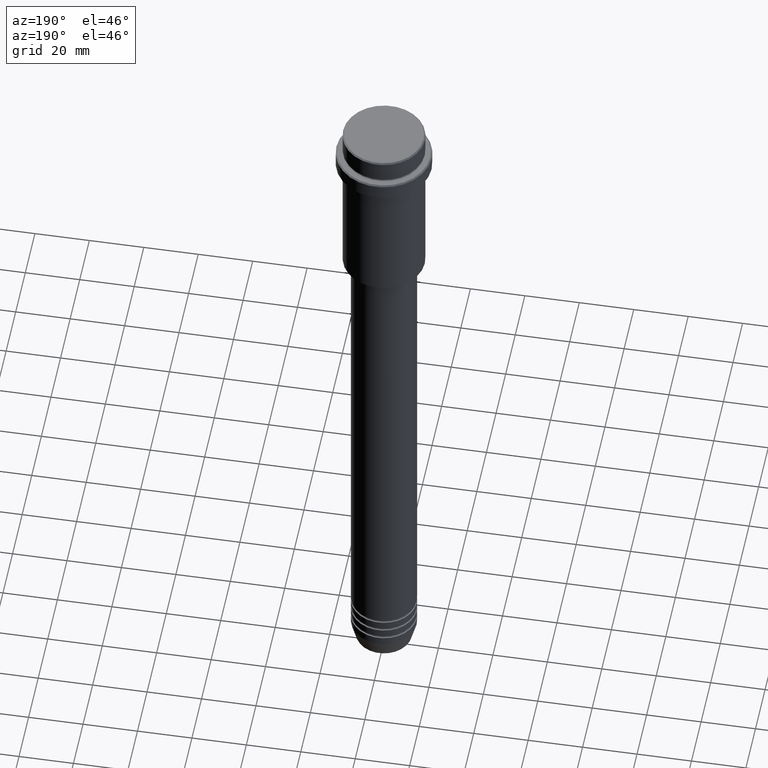
[diagram: clean part render]
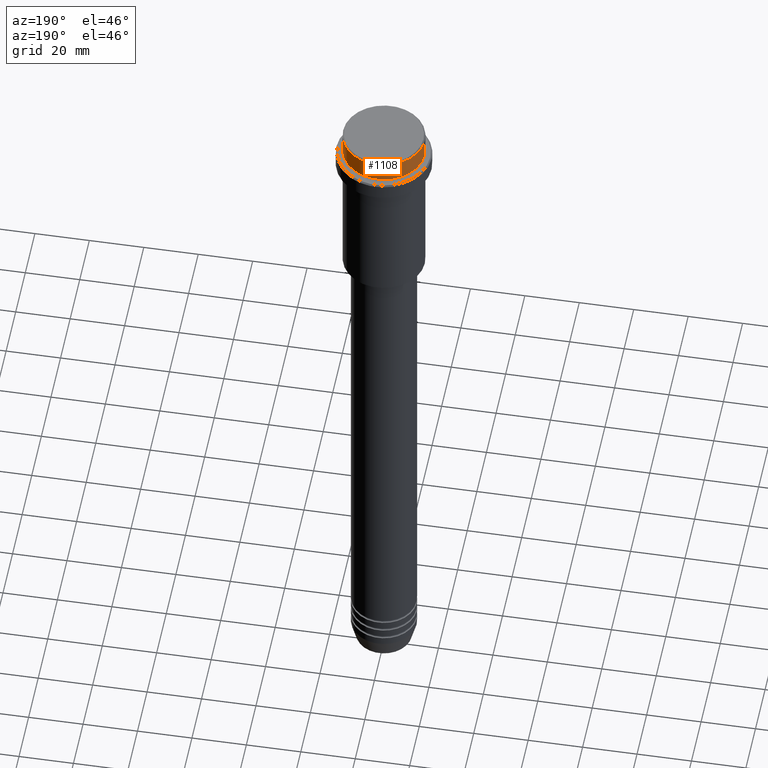
[diagram: same view with one face highlighted and labeled with its STEP entity id]
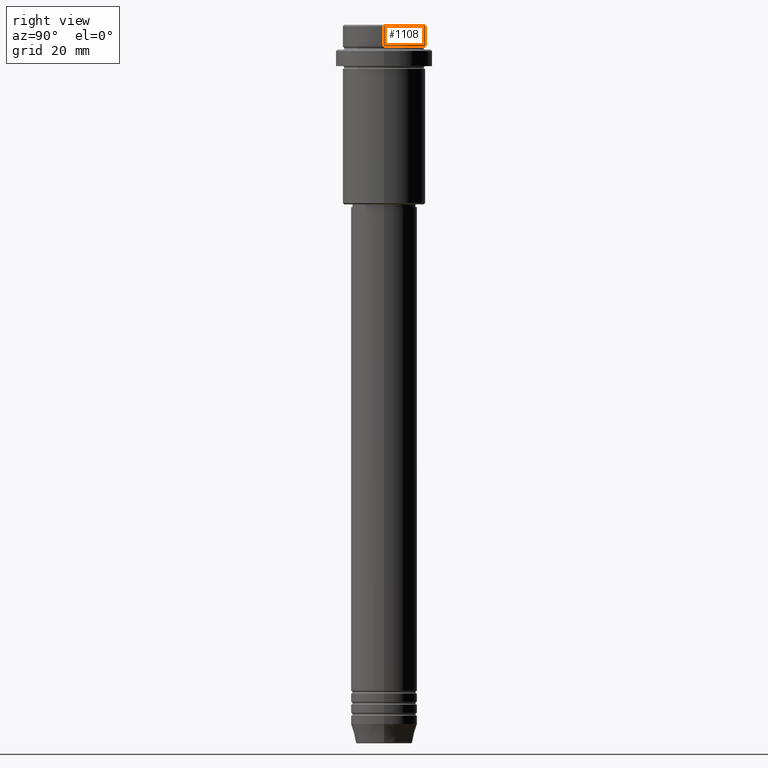
[diagram: same view with one face highlighted and labeled with its STEP entity id]
A machine part, auxiliary view. The second image highlights one B-rep face of the part: STEP entity #1108.
A second angle (right view) of the same face is appended — the face is thin or edge-on in the first view.
In plain terms, the highlighted cylindrical surface (partial cylindrical patch) has radius 15 mm, axis along (-0, -0, 1).
Its self-contained STEP definition (entity closure, byte-faithful):
#21 = DIRECTION ( 'NONE',  ( -0.000000000000000000, -0.000000000000000000, 1.000000000000000000 ) ) ;
#28 = CYLINDRICAL_SURFACE ( 'NONE', #862, 15.00000000000000000 ) ;
#65 = LINE ( 'NONE', #496, #192 ) ;
#81 = VERTEX_POINT ( 'NONE', #1085 ) ;
#145 = LINE ( 'NONE', #483, #997 ) ;
#173 = ORIENTED_EDGE ( 'NONE', *, *, #450, .T. ) ;
#192 = VECTOR ( 'NONE', #1375, 1000.000000000000000 ) ;
#195 = DIRECTION ( 'NONE',  ( -0.000000000000000000, -0.000000000000000000, 1.000000000000000000 ) ) ;
#249 = VERTEX_POINT ( 'NONE', #1035 ) ;
#256 = FACE_OUTER_BOUND ( 'NONE', #770, .T. ) ;
#260 = CARTESIAN_POINT ( 'NONE',  ( 0.000000000000000000, 0.000000000000000000, -7.999999999999998224 ) ) ;
#353 = AXIS2_PLACEMENT_3D ( 'NONE', #260, #896, #435 ) ;
#435 = DIRECTION ( 'NONE',  ( 1.000000000000000000, 0.000000000000000000, 0.000000000000000000 ) ) ;
#445 = CARTESIAN_POINT ( 'NONE',  ( 0.000000000000000000, 0.000000000000000000, -0.5000000000000108802 ) ) ;
#450 = EDGE_CURVE ( 'NONE', #249, #81, #1230, .T. ) ;
#455 = CARTESIAN_POINT ( 'NONE',  ( 0.000000000000000000, 0.000000000000000000, 0.000000000000000000 ) ) ;
#483 = CARTESIAN_POINT ( 'NONE',  ( -15.00000000000000000, 1.836970198721029589E-15, 0.000000000000000000 ) ) ;
#496 = CARTESIAN_POINT ( 'NONE',  ( 15.00000000000000000, 0.000000000000000000, 0.000000000000000000 ) ) ;
#525 = CARTESIAN_POINT ( 'NONE',  ( 15.00000000000000000, 0.000000000000000000, -7.999999999999998224 ) ) ;
#575 = DIRECTION ( 'NONE',  ( 0.000000000000000000, 0.000000000000000000, -1.000000000000000000 ) ) ;
#671 = DIRECTION ( 'NONE',  ( 1.000000000000000000, 0.000000000000000000, 0.000000000000000000 ) ) ;
#770 = EDGE_LOOP ( 'NONE', ( #1177, #1402, #173, #809 ) ) ;
#791 = VERTEX_POINT ( 'NONE', #525 ) ;
#809 = ORIENTED_EDGE ( 'NONE', *, *, #876, .F. ) ;
#862 = AXIS2_PLACEMENT_3D ( 'NONE', #455, #21, #1326 ) ;
#876 = EDGE_CURVE ( 'NONE', #791, #81, #65, .T. ) ;
#896 = DIRECTION ( 'NONE',  ( -0.000000000000000000, -0.000000000000000000, 1.000000000000000000 ) ) ;
#929 = EDGE_CURVE ( 'NONE', #1398, #249, #145, .T. ) ;
#997 = VECTOR ( 'NONE', #195, 1000.000000000000000 ) ;
#1035 = CARTESIAN_POINT ( 'NONE',  ( -15.00000000000000000, 1.836970198721029589E-15, -0.5000000000000108802 ) ) ;
#1043 = CARTESIAN_POINT ( 'NONE',  ( -15.00000000000000000, 1.836970198721029589E-15, -7.999999999999998224 ) ) ;
#1085 = CARTESIAN_POINT ( 'NONE',  ( 15.00000000000000000, 0.000000000000000000, -0.5000000000000108802 ) ) ;
#1108 = ADVANCED_FACE ( 'NONE', ( #256 ), #28, .T. ) ;
#1123 = AXIS2_PLACEMENT_3D ( 'NONE', #445, #575, #671 ) ;
#1177 = ORIENTED_EDGE ( 'NONE', *, *, #1229, .T. ) ;
#1229 = EDGE_CURVE ( 'NONE', #791, #1398, #1344, .T. ) ;
#1230 = CIRCLE ( 'NONE', #1123, 15.00000000000000000 ) ;
#1326 = DIRECTION ( 'NONE',  ( 1.000000000000000000, 0.000000000000000000, 0.000000000000000000 ) ) ;
#1344 = CIRCLE ( 'NONE', #353, 15.00000000000000000 ) ;
#1375 = DIRECTION ( 'NONE',  ( -0.000000000000000000, -0.000000000000000000, 1.000000000000000000 ) ) ;
#1398 = VERTEX_POINT ( 'NONE', #1043 ) ;
#1402 = ORIENTED_EDGE ( 'NONE', *, *, #929, .T. ) ;